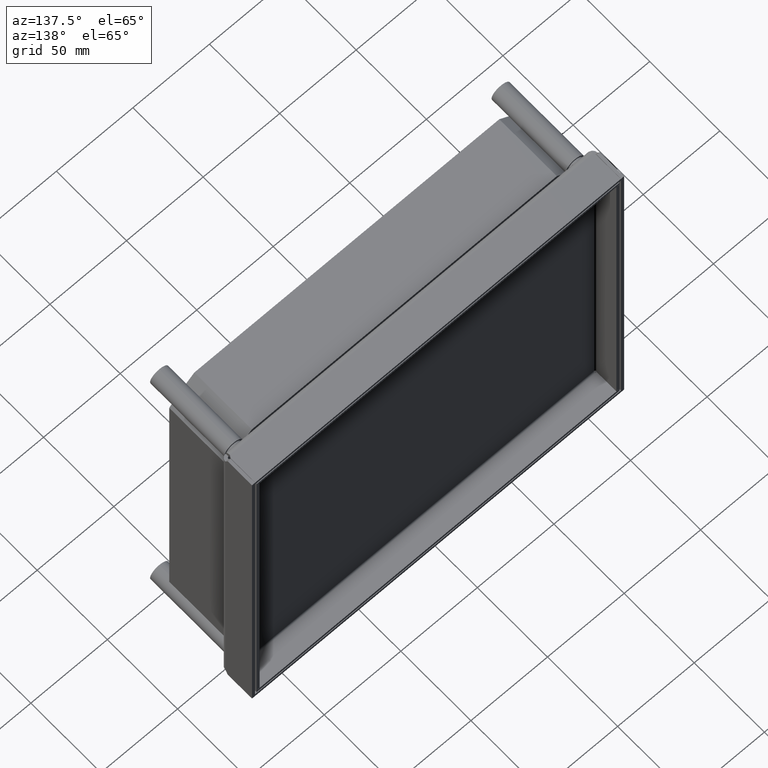
[diagram: clean part render]
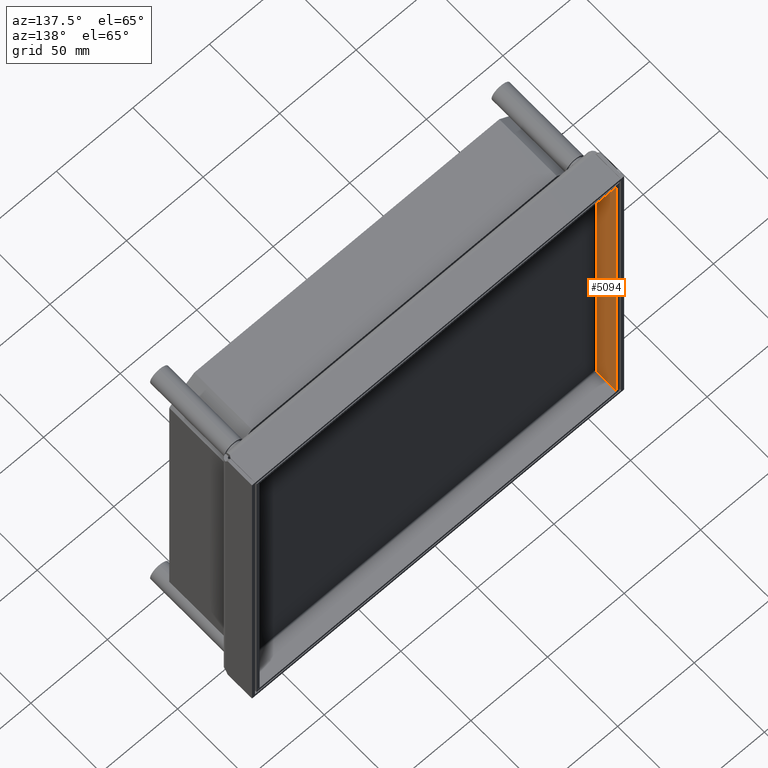
[diagram: same view with one face highlighted and labeled with its STEP entity id]
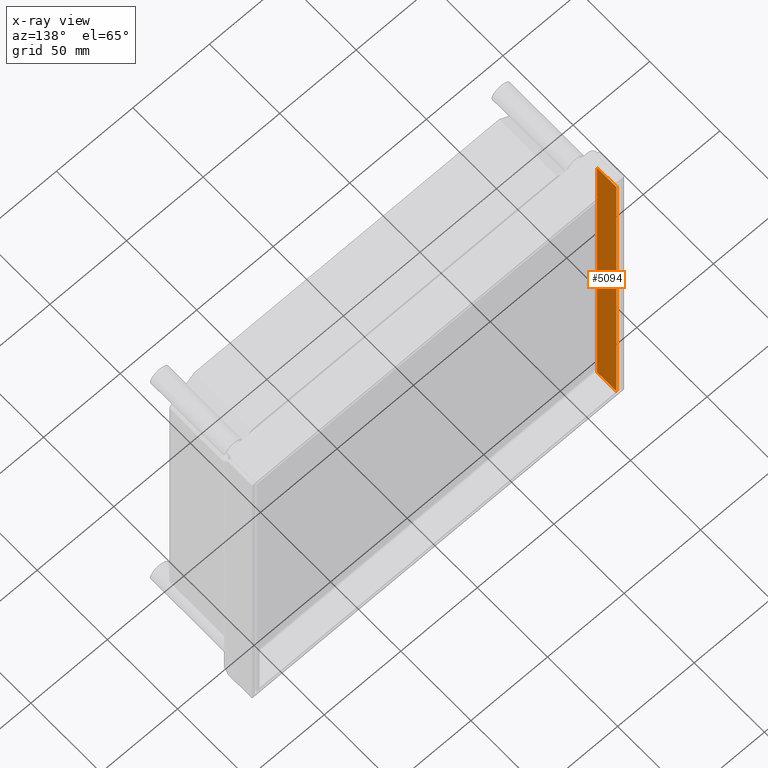
[diagram: x-ray of the same camera — body ghosted, the highlighted face saturated]
A machine part, auxiliary view. The second image highlights one B-rep face of the part: STEP entity #5094.
The next image is the same camera in x-ray: the body ghosted, the highlighted face saturated — about 0% of this face is hidden behind the body in this view.
In plain terms, the highlighted planar face has unit normal (-1, 0, 0).
Its self-contained STEP definition (entity closure, byte-faithful):
#4334=DIRECTION('',(0.E0,0.E0,1.E0));
#4335=VECTOR('',#4334,9.5E-1);
#4336=CARTESIAN_POINT('',(-1.165E2,3.E0,1.155E2));
#4337=LINE('',#4336,#4335);
#4338=DIRECTION('',(0.E0,1.E0,0.E0));
#4339=VECTOR('',#4338,1.4E1);
#4340=CARTESIAN_POINT('',(-1.165E2,3.E0,1.1645E2));
#4341=LINE('',#4340,#4339);
#4342=DIRECTION('',(0.E0,0.E0,-1.E0));
#4343=VECTOR('',#4342,2.329E2);
#4344=CARTESIAN_POINT('',(-1.165E2,1.7E1,1.1645E2));
#4345=LINE('',#4344,#4343);
#4350=DIRECTION('',(0.E0,0.E0,-1.E0));
#4351=VECTOR('',#4350,2.31E2);
#4352=CARTESIAN_POINT('',(-1.165E2,3.E0,1.155E2));
#4353=LINE('',#4352,#4351);
#4414=DIRECTION('',(0.E0,1.E0,0.E0));
#4415=VECTOR('',#4414,1.4E1);
#4416=CARTESIAN_POINT('',(-1.165E2,3.E0,-1.1645E2));
#4417=LINE('',#4416,#4415);
#4422=DIRECTION('',(0.E0,0.E0,-1.E0));
#4423=VECTOR('',#4422,9.5E-1);
#4424=CARTESIAN_POINT('',(-1.165E2,3.E0,-1.155E2));
#4425=LINE('',#4424,#4423);
#4520=CARTESIAN_POINT('',(-1.165E2,3.E0,-1.155E2));
#4521=VERTEX_POINT('',#4520);
#4532=CARTESIAN_POINT('',(-1.165E2,1.7E1,1.1645E2));
#4533=CARTESIAN_POINT('',(-1.165E2,1.7E1,-1.1645E2));
#4534=VERTEX_POINT('',#4532);
#4535=VERTEX_POINT('',#4533);
#4536=CARTESIAN_POINT('',(-1.165E2,3.E0,1.155E2));
#4537=VERTEX_POINT('',#4536);
#4538=CARTESIAN_POINT('',(-1.165E2,3.E0,1.1645E2));
#4539=VERTEX_POINT('',#4538);
#4540=CARTESIAN_POINT('',(-1.165E2,3.E0,-1.1645E2));
#4541=VERTEX_POINT('',#4540);
#5076=CARTESIAN_POINT('',(-1.165E2,0.E0,-8.80572E1));
#5077=DIRECTION('',(-1.E0,0.E0,0.E0));
#5078=DIRECTION('',(0.E0,0.E0,1.E0));
#5079=AXIS2_PLACEMENT_3D('',#5076,#5077,#5078);
#5080=PLANE('',#5079);
#5082=ORIENTED_EDGE('',*,*,#5081,.F.);
#5084=ORIENTED_EDGE('',*,*,#5083,.T.);
#5086=ORIENTED_EDGE('',*,*,#5085,.T.);
#5087=ORIENTED_EDGE('',*,*,#5066,.T.);
#5089=ORIENTED_EDGE('',*,*,#5088,.F.);
#5091=ORIENTED_EDGE('',*,*,#5090,.F.);
#5092=EDGE_LOOP('',(#5082,#5084,#5086,#5087,#5089,#5091));
#5093=FACE_OUTER_BOUND('',#5092,.F.);
#5066=EDGE_CURVE('',#4534,#4535,#4345,.T.);
#5081=EDGE_CURVE('',#4537,#4521,#4353,.T.);
#5083=EDGE_CURVE('',#4537,#4539,#4337,.T.);
#5085=EDGE_CURVE('',#4539,#4534,#4341,.T.);
#5088=EDGE_CURVE('',#4541,#4535,#4417,.T.);
#5090=EDGE_CURVE('',#4521,#4541,#4425,.T.);
#5094=ADVANCED_FACE('',(#5093),#5080,.F.);